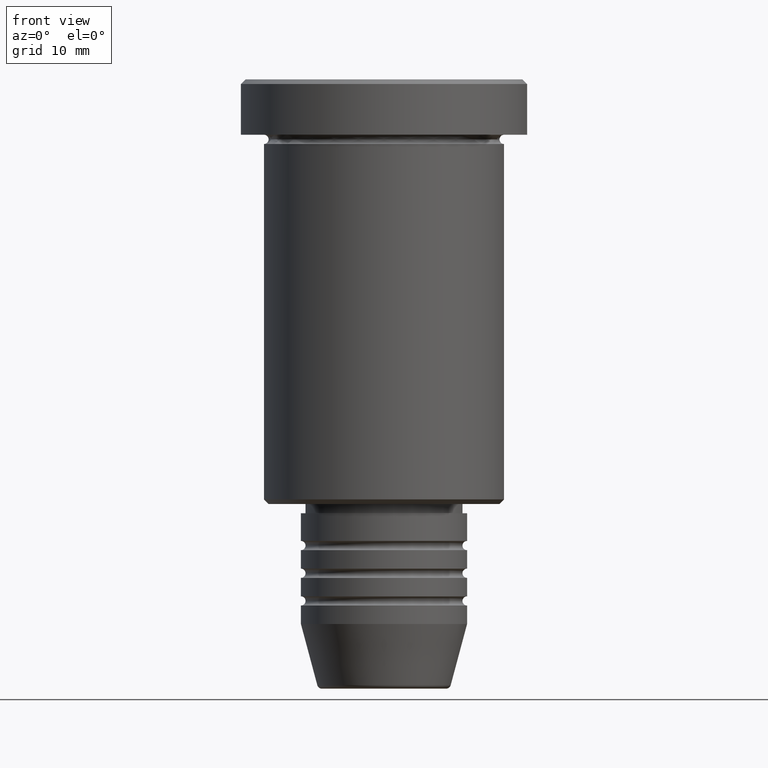
[diagram: clean part render]
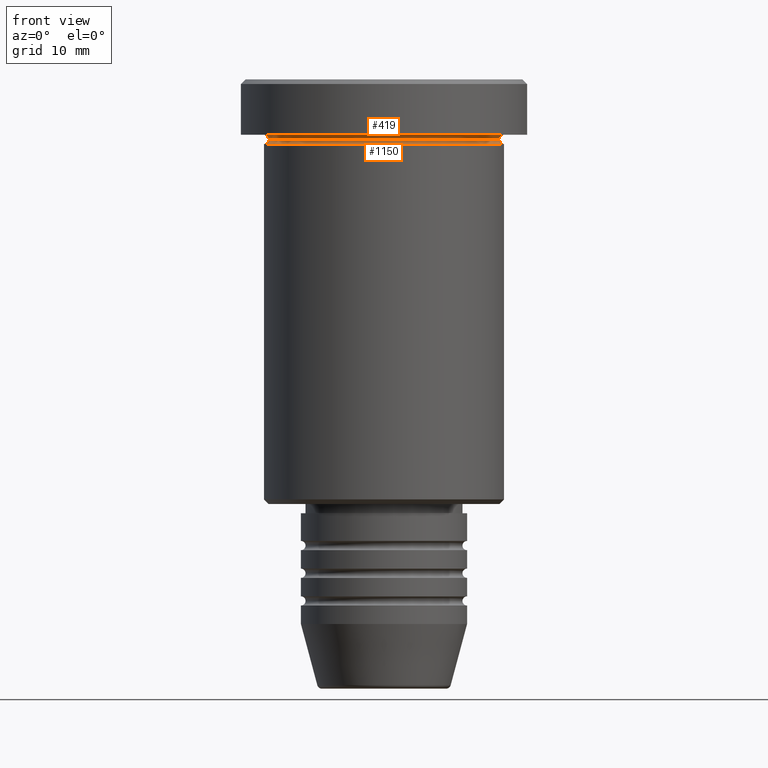
[diagram: same view with one multi-face feature highlighted, each face labeled with its STEP entity id]
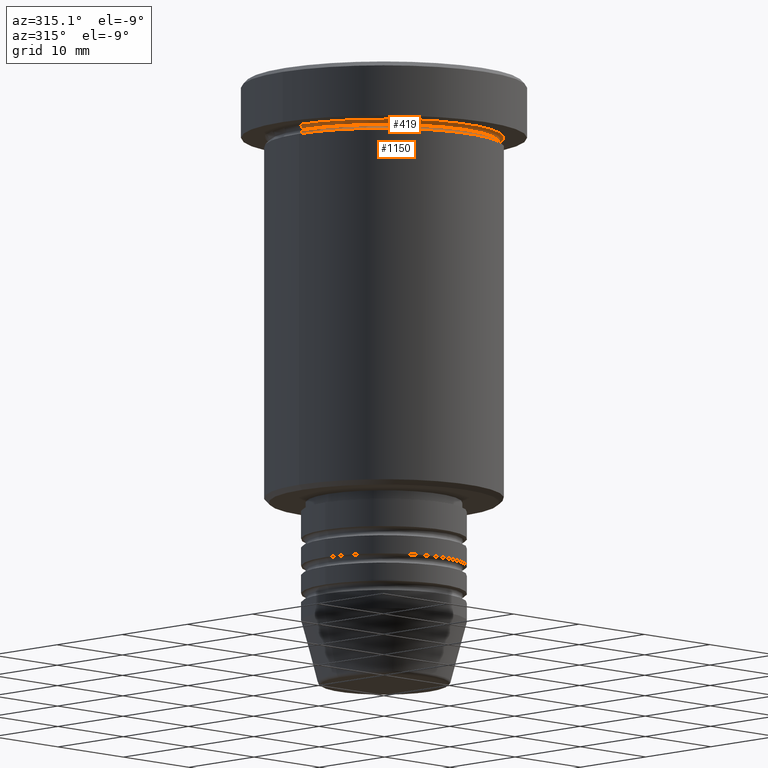
[diagram: same view with one multi-face feature highlighted, each face labeled with its STEP entity id]
A machine part, front view. The highlighted faces form ONE feature: a constant-radius fillet chain: 2 tangent blend faces with common blend radius 0.5 mm. The faces share edges in the B-rep.
A second angle (auxiliary view) of the same feature is appended — it is thin or edge-on in the first view.
Their STEP definitions:
[1] entity #419 (Torus):
#37 = DIRECTION ( 'NONE',  ( 0.000000000000000000, 0.000000000000000000, -1.000000000000000000 ) ) ;
#42 = FACE_OUTER_BOUND ( 'NONE', #730, .T. ) ;
#133 = VERTEX_POINT ( 'NONE', #164 ) ;
#148 = AXIS2_PLACEMENT_3D ( 'NONE', #708, #258, #533 ) ;
#155 = ORIENTED_EDGE ( 'NONE', *, *, #1181, .T. ) ;
#164 = CARTESIAN_POINT ( 'NONE',  ( 13.00000000000000000, 1.592040838891559095E-15, -5.999999999999994671 ) ) ;
#201 = DIRECTION ( 'NONE',  ( -1.000000000000000000, -1.224646799147353454E-16, 0.000000000000000000 ) ) ;
#258 = DIRECTION ( 'NONE',  ( -0.000000000000000000, -0.000000000000000000, 1.000000000000000000 ) ) ;
#300 = TOROIDAL_SURFACE ( 'NONE', #694, 13.00000000000000000, 0.5000000000000000000 ) ;
#303 = AXIS2_PLACEMENT_3D ( 'NONE', #468, #309, #667 ) ;
#309 = DIRECTION ( 'NONE',  ( -0.000000000000000000, -1.000000000000000000, -0.000000000000000000 ) ) ;
#395 = ORIENTED_EDGE ( 'NONE', *, *, #950, .F. ) ;
#415 = ORIENTED_EDGE ( 'NONE', *, *, #537, .T. ) ;
#419 = ADVANCED_FACE ( 'NONE', ( #42 ), #300, .F. ) ;
#435 = CIRCLE ( 'NONE', #675, 12.49999999999999822 ) ;
#443 = ORIENTED_EDGE ( 'NONE', *, *, #805, .F. ) ;
#468 = CARTESIAN_POINT ( 'NONE',  ( -13.00000000000000000, 0.000000000000000000, -6.499999999999995559 ) ) ;
#533 = DIRECTION ( 'NONE',  ( -1.000000000000000000, 0.000000000000000000, 0.000000000000000000 ) ) ;
#537 = EDGE_CURVE ( 'NONE', #1110, #836, #435, .T. ) ;
#547 = CIRCLE ( 'NONE', #303, 0.5000000000000004441 ) ;
#639 = CIRCLE ( 'NONE', #148, 13.00000000000000000 ) ;
#667 = DIRECTION ( 'NONE',  ( 0.000000000000000000, 0.000000000000000000, -1.000000000000000000 ) ) ;
#675 = AXIS2_PLACEMENT_3D ( 'NONE', #1065, #979, #961 ) ;
#694 = AXIS2_PLACEMENT_3D ( 'NONE', #754, #37, #1124 ) ;
#708 = CARTESIAN_POINT ( 'NONE',  ( 0.000000000000000000, 0.000000000000000000, -5.999999999999995559 ) ) ;
#716 = CARTESIAN_POINT ( 'NONE',  ( 12.49999999999999822, 0.000000000000000000, -6.499999999999995559 ) ) ;
#730 = EDGE_LOOP ( 'NONE', ( #415, #155, #443, #395 ) ) ;
#754 = CARTESIAN_POINT ( 'NONE',  ( 0.000000000000000000, 0.000000000000000000, -6.499999999999995559 ) ) ;
#805 = EDGE_CURVE ( 'NONE', #1049, #133, #639, .T. ) ;
#815 = AXIS2_PLACEMENT_3D ( 'NONE', #1183, #1001, #201 ) ;
#833 = CIRCLE ( 'NONE', #815, 0.5000000000000004441 ) ;
#836 = VERTEX_POINT ( 'NONE', #716 ) ;
#837 = CARTESIAN_POINT ( 'NONE',  ( -12.49999999999999822, 1.561424668912875308E-15, -6.499999999999995559 ) ) ;
#950 = EDGE_CURVE ( 'NONE', #1110, #1049, #547, .T. ) ;
#961 = DIRECTION ( 'NONE',  ( 1.000000000000000000, 0.000000000000000000, 0.000000000000000000 ) ) ;
#979 = DIRECTION ( 'NONE',  ( -0.000000000000000000, -0.000000000000000000, 1.000000000000000000 ) ) ;
#1001 = DIRECTION ( 'NONE',  ( -1.224646799147353207E-16, 1.000000000000000000, 0.000000000000000000 ) ) ;
#1049 = VERTEX_POINT ( 'NONE', #1063 ) ;
#1063 = CARTESIAN_POINT ( 'NONE',  ( -13.00000000000000000, 0.000000000000000000, -5.999999999999994671 ) ) ;
#1065 = CARTESIAN_POINT ( 'NONE',  ( 0.000000000000000000, 0.000000000000000000, -6.499999999999995559 ) ) ;
#1110 = VERTEX_POINT ( 'NONE', #837 ) ;
#1124 = DIRECTION ( 'NONE',  ( -1.000000000000000000, 0.000000000000000000, 0.000000000000000000 ) ) ;
#1181 = EDGE_CURVE ( 'NONE', #836, #133, #833, .T. ) ;
#1183 = CARTESIAN_POINT ( 'NONE',  ( 13.00000000000000000, 1.592040838891559095E-15, -6.499999999999995559 ) ) ;
[2] entity #1150 (Torus):
#86 = DIRECTION ( 'NONE',  ( 1.000000000000000000, 0.000000000000000000, 0.000000000000000000 ) ) ;
#140 = CARTESIAN_POINT ( 'NONE',  ( 13.00000000000000000, 0.000000000000000000, -6.999999999999995559 ) ) ;
#174 = EDGE_CURVE ( 'NONE', #1110, #660, #353, .T. ) ;
#178 = FACE_OUTER_BOUND ( 'NONE', #399, .T. ) ;
#187 = CARTESIAN_POINT ( 'NONE',  ( 0.000000000000000000, 0.000000000000000000, -6.999999999999995559 ) ) ;
#245 = CIRCLE ( 'NONE', #492, 0.5000000000000004441 ) ;
#264 = ORIENTED_EDGE ( 'NONE', *, *, #1017, .F. ) ;
#287 = DIRECTION ( 'NONE',  ( -0.000000000000000000, -0.000000000000000000, 1.000000000000000000 ) ) ;
#307 = ORIENTED_EDGE ( 'NONE', *, *, #174, .T. ) ;
#332 = DIRECTION ( 'NONE',  ( 1.224646799147353207E-16, 1.000000000000000000, 0.000000000000000000 ) ) ;
#339 = TOROIDAL_SURFACE ( 'NONE', #457, 13.00000000000000000, 0.5000000000000000000 ) ;
#347 = DIRECTION ( 'NONE',  ( 0.000000000000000000, -1.000000000000000000, 0.000000000000000000 ) ) ;
#353 = CIRCLE ( 'NONE', #1137, 0.5000000000000004441 ) ;
#380 = AXIS2_PLACEMENT_3D ( 'NONE', #187, #287, #541 ) ;
#399 = EDGE_LOOP ( 'NONE', ( #571, #307, #1018, #264 ) ) ;
#435 = CIRCLE ( 'NONE', #675, 12.49999999999999822 ) ;
#457 = AXIS2_PLACEMENT_3D ( 'NONE', #917, #819, #86 ) ;
#492 = AXIS2_PLACEMENT_3D ( 'NONE', #900, #347, #787 ) ;
#528 = CARTESIAN_POINT ( 'NONE',  ( -13.00000000000000000, 1.592040838891559095E-15, -6.999999999999995559 ) ) ;
#537 = EDGE_CURVE ( 'NONE', #1110, #836, #435, .T. ) ;
#541 = DIRECTION ( 'NONE',  ( 1.000000000000000000, 0.000000000000000000, 0.000000000000000000 ) ) ;
#571 = ORIENTED_EDGE ( 'NONE', *, *, #537, .F. ) ;
#630 = VERTEX_POINT ( 'NONE', #140 ) ;
#660 = VERTEX_POINT ( 'NONE', #528 ) ;
#675 = AXIS2_PLACEMENT_3D ( 'NONE', #1065, #979, #961 ) ;
#716 = CARTESIAN_POINT ( 'NONE',  ( 12.49999999999999822, 0.000000000000000000, -6.499999999999995559 ) ) ;
#787 = DIRECTION ( 'NONE',  ( 0.000000000000000000, 0.000000000000000000, -1.000000000000000000 ) ) ;
#819 = DIRECTION ( 'NONE',  ( -0.000000000000000000, -0.000000000000000000, 1.000000000000000000 ) ) ;
#836 = VERTEX_POINT ( 'NONE', #716 ) ;
#837 = CARTESIAN_POINT ( 'NONE',  ( -12.49999999999999822, 1.561424668912875308E-15, -6.499999999999995559 ) ) ;
#866 = DIRECTION ( 'NONE',  ( -1.000000000000000000, 1.224646799147353454E-16, 0.000000000000000000 ) ) ;
#900 = CARTESIAN_POINT ( 'NONE',  ( 13.00000000000000000, 0.000000000000000000, -6.499999999999995559 ) ) ;
#917 = CARTESIAN_POINT ( 'NONE',  ( 0.000000000000000000, 0.000000000000000000, -6.499999999999995559 ) ) ;
#961 = DIRECTION ( 'NONE',  ( 1.000000000000000000, 0.000000000000000000, 0.000000000000000000 ) ) ;
#967 = CIRCLE ( 'NONE', #380, 13.00000000000000000 ) ;
#979 = DIRECTION ( 'NONE',  ( -0.000000000000000000, -0.000000000000000000, 1.000000000000000000 ) ) ;
#1017 = EDGE_CURVE ( 'NONE', #836, #630, #245, .T. ) ;
#1018 = ORIENTED_EDGE ( 'NONE', *, *, #1116, .T. ) ;
#1065 = CARTESIAN_POINT ( 'NONE',  ( 0.000000000000000000, 0.000000000000000000, -6.499999999999995559 ) ) ;
#1071 = CARTESIAN_POINT ( 'NONE',  ( -13.00000000000000000, 1.592040838891559095E-15, -6.499999999999995559 ) ) ;
#1110 = VERTEX_POINT ( 'NONE', #837 ) ;
#1116 = EDGE_CURVE ( 'NONE', #660, #630, #967, .T. ) ;
#1137 = AXIS2_PLACEMENT_3D ( 'NONE', #1071, #332, #866 ) ;
#1150 = ADVANCED_FACE ( 'NONE', ( #178 ), #339, .F. ) ;